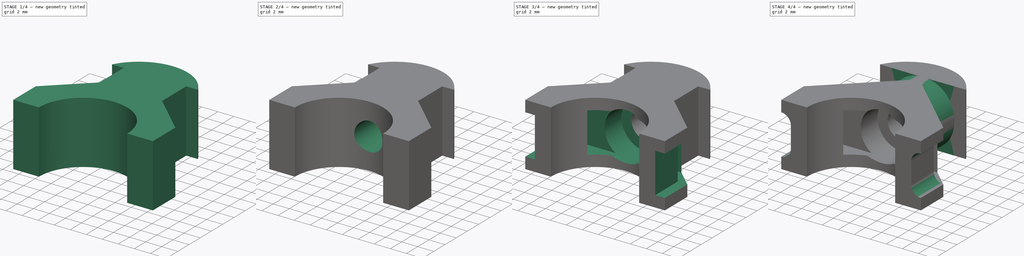
[diagram: build sequence overview — one tinted view per stage of 4, left to right]
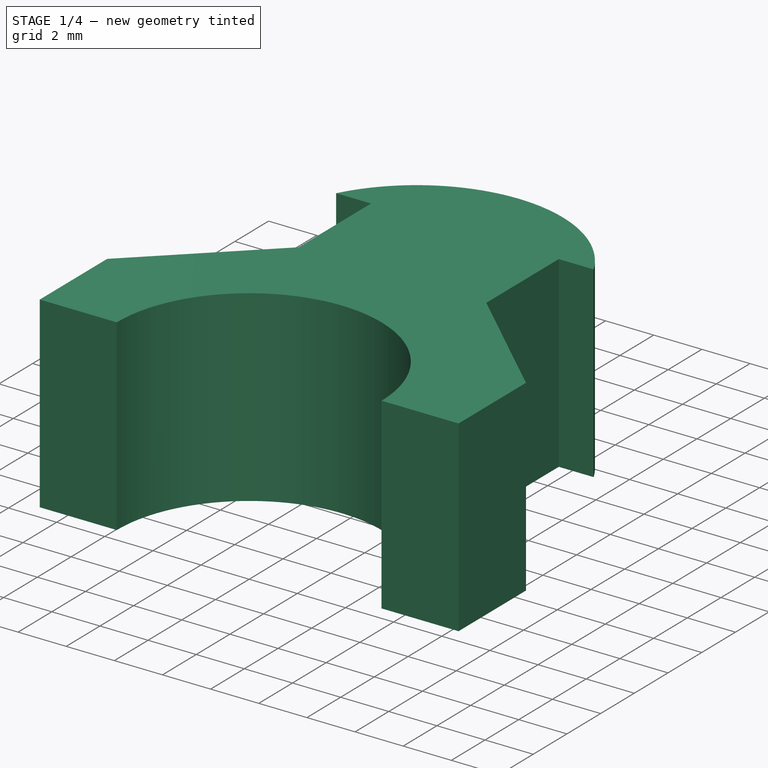
[diagram: stage 1 of 4 — iso view after this stage's code; geometry added in this stage tinted green]
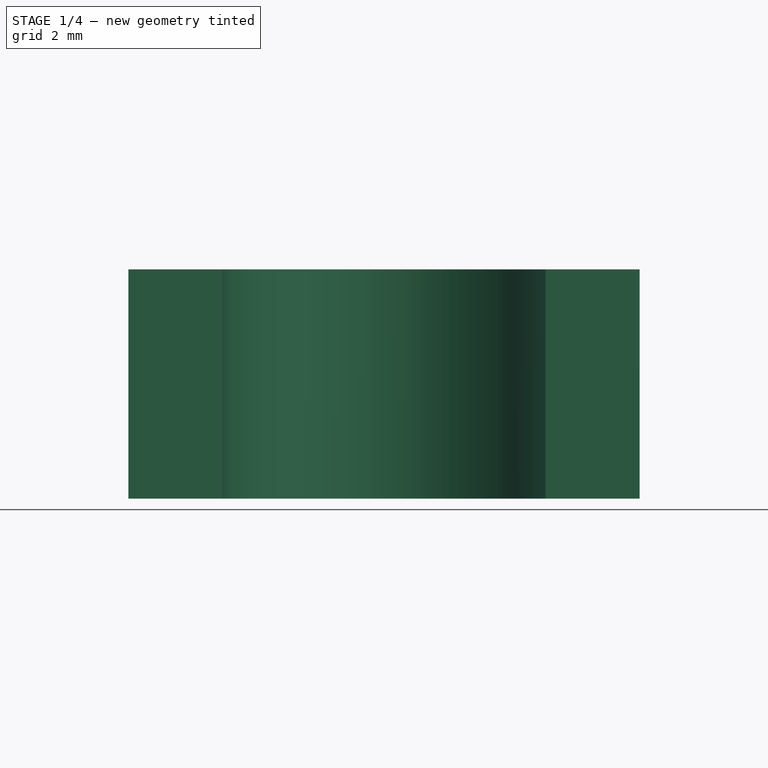
[diagram: stage 1 of 4 — front view after this stage's code; geometry added in this stage tinted green]
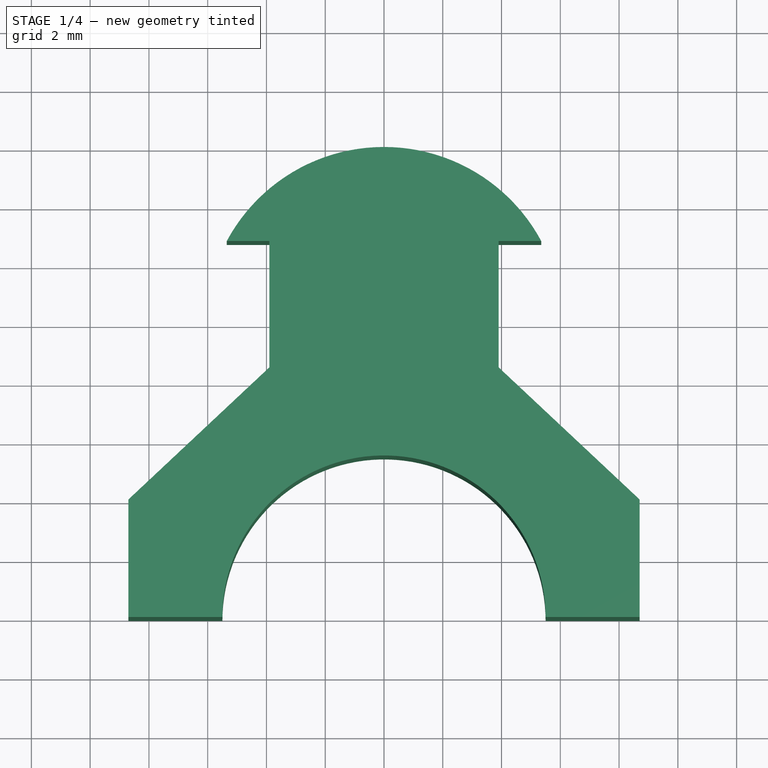
[diagram: stage 1 of 4 — top view after this stage's code; geometry added in this stage tinted green]
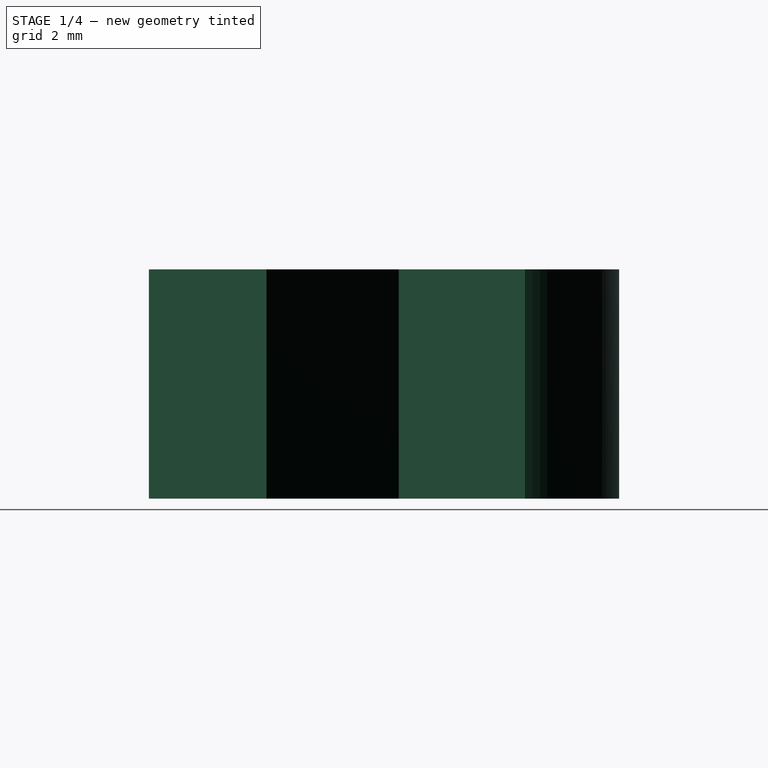
[diagram: stage 1 of 4 — right view after this stage's code; geometry added in this stage tinted green]
FCSTD DOCUMENT  (FreeCAD 0.17R13519 (Git))
Label: Corelia_0_hose_ziptie
License: All rights reserved
LicenseURL: http://en.wikipedia.org/wiki/All_rights_reserved
objects: Sketcher::SketchObject×7, PartDesign::Pocket×5, PartDesign::Pad×2, PartDesign::Plane×2, PartDesign::Fillet×2, PartDesign::Body×1
note: 26 computed .brp shape members not serialized (recipe doc carries the construction recipe); baked Part::Feature solids carry a one-line shape summary decoded from their .brp

FEATURE [Sketcher::SketchObject] Sketch
  MapMode = 5
  Support = -> [XY_Plane]
  sketch-geometry (7):
    g0: LineSegment StartX=-3.9 StartY=0 StartZ=0 EndX=3.9 EndY=0 EndZ=0
    g1: LineSegment StartX=3.9 StartY=0 StartZ=0 EndX=3.9 EndY=0.8 EndZ=0
    g2: LineSegment StartX=3.9 StartY=0.8 StartZ=0 EndX=5.35 EndY=0.8 EndZ=0
    g3: LineSegment StartX=-3.9 StartY=0 StartZ=0 EndX=-3.9 EndY=0.8 EndZ=0
    g4: LineSegment StartX=-3.9 StartY=0.8 StartZ=0 EndX=-5.35 EndY=0.8 EndZ=0
    g5: ArcOfCircle CenterX=0 CenterY=-2.07227 CenterZ=0 NormalX=0 NormalY=0 NormalZ=1 AngleXU=0 Radius=6.07227 StartAngle=0.492708 EndAngle=2.64888
    g6: LineSegment StartX=0 StartY=0 StartZ=0 EndX=0 EndY=4 EndZ=0
  constraints (22):
    c: PointOnObject(g0,g-1)
    c: Horizontal(g0)
    c: Coincident(g0,g1)
    c: Vertical(g1)
    c: Coincident(g1,g2)
    c: Horizontal(g2)
    c: Coincident(g0,g3)
    c: Vertical(g3)
    c: Coincident(g3,g4)
    c: Horizontal(g4)
    c: Symmetric(g0,g0,g-2)
    c: DistanceX(g0,g0) = 7.8
    c: Equal(g4,g2)
    c: DistanceX(g4,g2) = 10.7
    c: DistanceY(g3,g3) = 0.8
    c: Equal(g3,g1)
    c: Coincident(g5,g4)
    c: Coincident(g5,g2)
    c: Coincident(g6,g-1)
    c: PointOnObject(g6,g5)
    c: Vertical(g6)
    c: DistanceY(g6,g6) = 4
FEATURE [PartDesign::Pad] Pad
  Length = 7.8
  Length2 = 100
  Midplane = true
  Profile = -> Sketch
  Type = 0
FEATURE [Sketcher::SketchObject] Sketch001
  MapMode = 5
  Placement = pos=(0,0,-3.9) rot=(1,0,0;3.14159rad)
  Support = -> [Pad]
  sketch-geometry (10):
    g0: LineSegment StartX=-8.7 StartY=12 StartZ=0 EndX=-8.7 EndY=8 EndZ=0
    g1: LineSegment StartX=-3.9 StartY=0 StartZ=0 EndX=3.9 EndY=0 EndZ=0
    g2: LineSegment StartX=8.7 StartY=8 StartZ=0 EndX=8.7 EndY=12 EndZ=0
    g3: LineSegment StartX=8.7 StartY=12 StartZ=0 EndX=5.5 EndY=12 EndZ=0
    g4: ArcOfCircle CenterX=0 CenterY=12 CenterZ=0 NormalX=0 NormalY=0 NormalZ=1 AngleXU=0 Radius=5.5 StartAngle=3.14159 EndAngle=6.28319
    g5: LineSegment StartX=-5.5 StartY=12 StartZ=0 EndX=-8.7 EndY=12 EndZ=0
    g6: LineSegment StartX=-8.7 StartY=8 StartZ=0 EndX=-3.9 EndY=3.5 EndZ=0
    g7: LineSegment StartX=-3.9 StartY=3.5 StartZ=0 EndX=-3.9 EndY=0 EndZ=0
    g8: LineSegment StartX=8.7 StartY=8 StartZ=0 EndX=3.9 EndY=3.5 EndZ=0
    g9: LineSegment StartX=3.9 StartY=3.5 StartZ=0 EndX=3.9 EndY=0 EndZ=0
  constraints (30):
    c: Vertical(g0)
    c: Horizontal(g1)
    c: Vertical(g2)
    c: Coincident(g2,g3)
    c: Coincident(g5,g0)
    c: Horizontal(g3)
    c: Coincident(g5,g4)
    c: Tangent(g3,g5)
    c: Coincident(g3,g4)
    c: PointOnObject(g-1,g1)
    c: DistanceX(g1,g1) = 7.8
    c: Symmetric(g1,g1,g-2)
    c: Radius(g4) = 5.5
    c: Equal(g5,g3)
    c: Equal(g0,g2)
    c: PointOnObject(g4,g-2)
    c: PointOnObject(g4,g5)
    c: DistanceY(g4) = 12
    c: DistanceX(g5,g5) = 3.2
    c: DistanceY(g1,g0) = 8
    c: Coincident(g0,g6)
    c: Coincident(g6,g7)
    c: Coincident(g7,g1)
    c: Vertical(g7)
    c: Coincident(g2,g8)
    c: Coincident(g8,g9)
    c: Coincident(g9,g1)
    c: Vertical(g9)
    c: Equal(g9,g7)
    c: DistanceY(g7,g7) = 3.5
FEATURE [PartDesign::Pad] Pad001
  BaseFeature = -> Pad
  Length = 7.8
  Length2 = 100
  Profile = -> Sketch001
  Reversed = true
  Type = 0
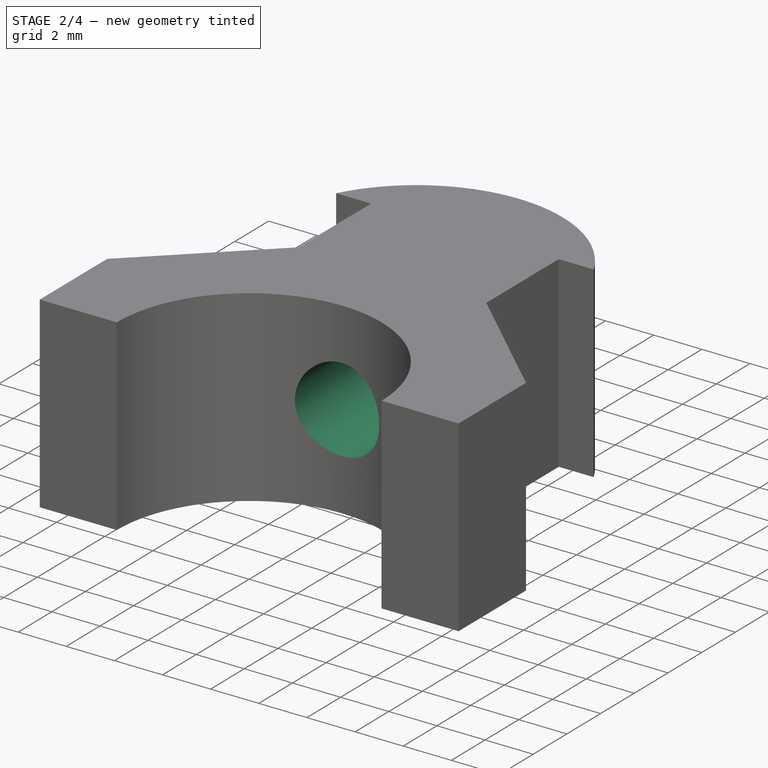
[diagram: stage 2 of 4 — iso view after this stage's code; geometry added in this stage tinted green]
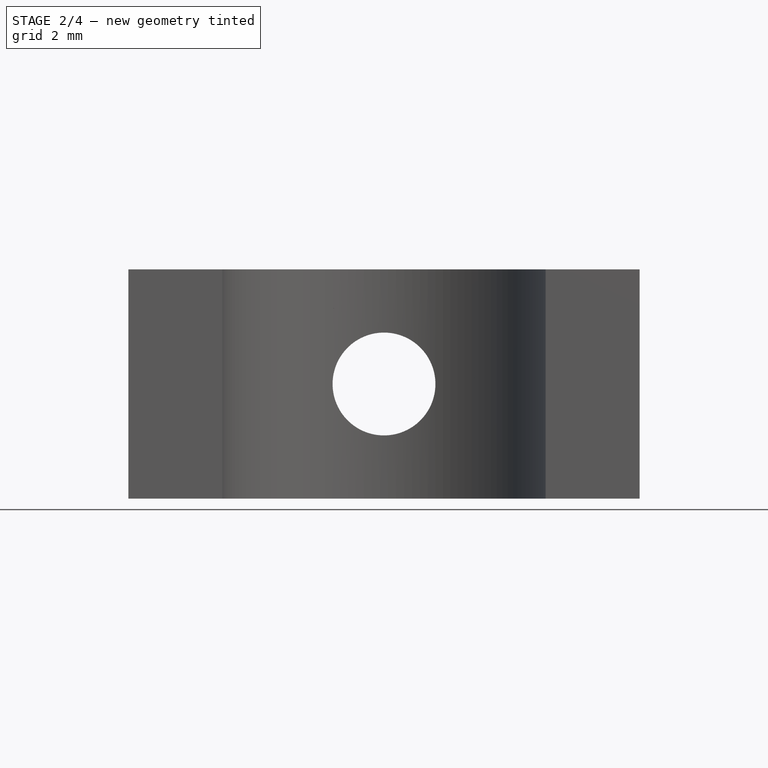
[diagram: stage 2 of 4 — front view after this stage's code; geometry added in this stage tinted green]
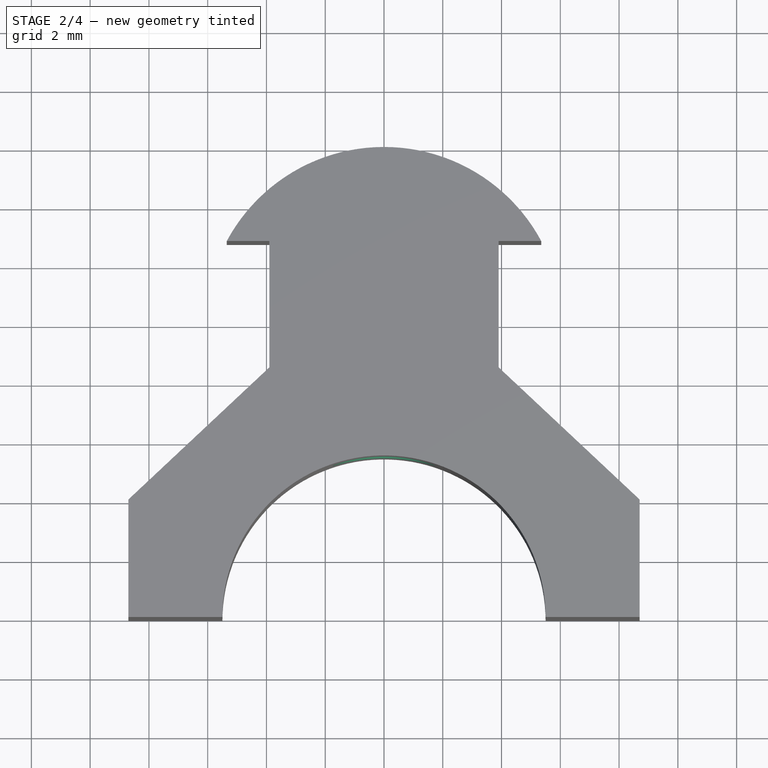
[diagram: stage 2 of 4 — top view after this stage's code; geometry added in this stage tinted green]
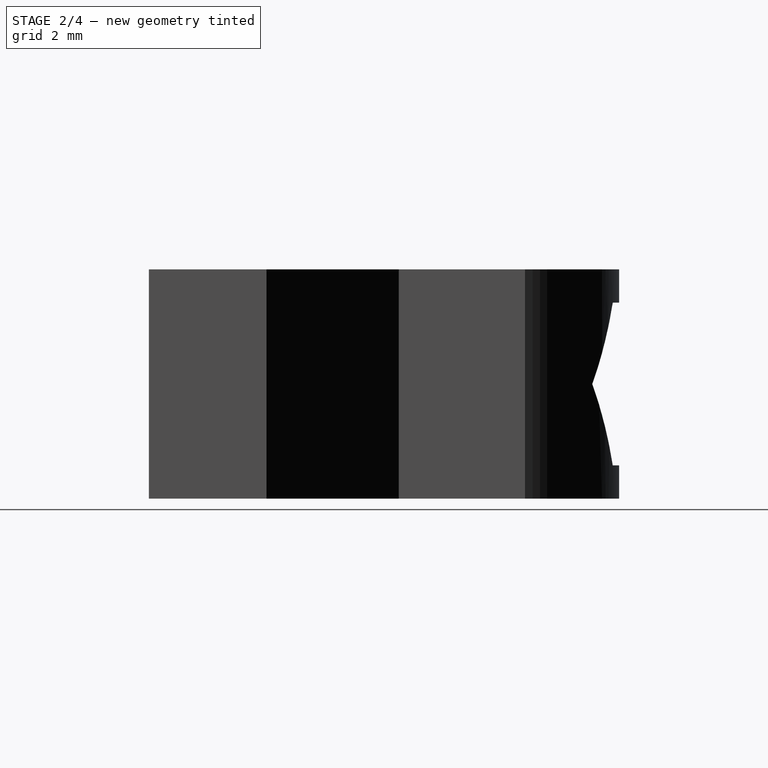
[diagram: stage 2 of 4 — right view after this stage's code; geometry added in this stage tinted green]
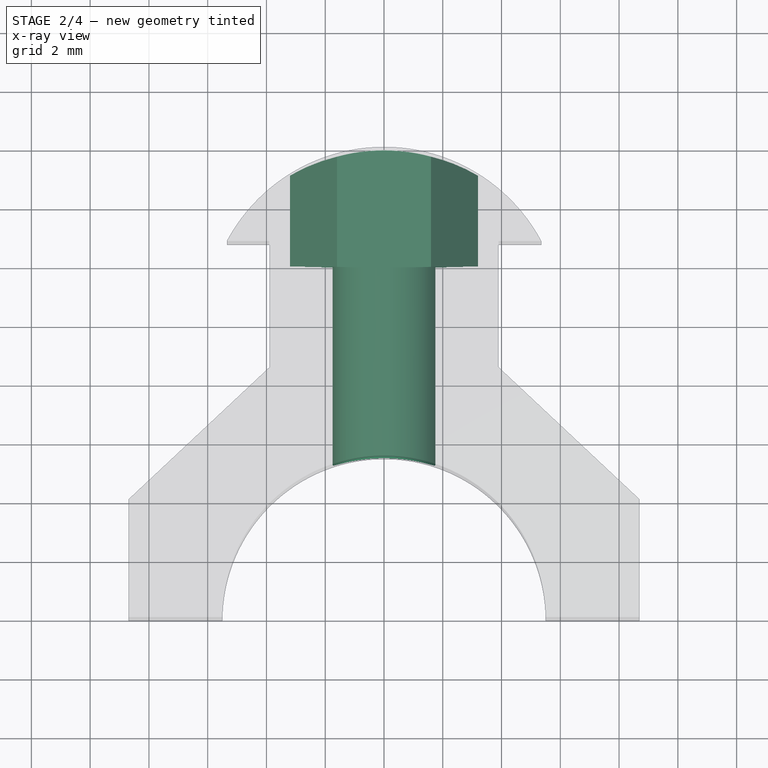
[diagram: stage 2 of 4 — x-ray composite at the top view; earlier geometry ghosted, this stage's added geometry solid]
FEATURE [Sketcher::SketchObject] Sketch002
  MapMode = 5
  Placement = pos=(0,0,0) rot=(1,0,0;1.5708rad)
  Support = -> [XZ_Plane]
  sketch-geometry (1):
    g0: Circle CenterX=0 CenterY=0 CenterZ=0 NormalX=0 NormalY=0 NormalZ=1 AngleXU=0 Radius=1.75
  constraints (3):
    c: PointOnObject(g0,g-1)
    c: Radius(g0) = 1.75
    c: Coincident(g-1,g0)
FEATURE [PartDesign::Pocket] Pocket
  BaseFeature = -> Pad001
  Length = 5
  Length2 = 100
  Midplane = true
  Profile = -> Sketch002
  Type = 1
FEATURE [PartDesign::Plane] DatumPlane
  AttachmentOffset = pos=(0,0,-4) rot=(0,0,1;0rad)
  MapMode = 5
  Placement = pos=(0,4,0) rot=(1,0,0;1.5708rad)
  Support = -> [XZ_Plane]
FEATURE [Sketcher::SketchObject] Sketch003
  MapMode = 5
  Placement = pos=(0,4,0) rot=(1,0,0;1.5708rad)
  Support = -> [DatumPlane]
  sketch-geometry (7):
    g0: LineSegment StartX=-1.6 StartY=-2.77128 StartZ=0 EndX=1.6 EndY=-2.77128 EndZ=0
    g1: LineSegment StartX=1.6 StartY=-2.77128 StartZ=0 EndX=3.2 EndY=0 EndZ=0
    g2: LineSegment StartX=3.2 StartY=0 StartZ=0 EndX=1.6 EndY=2.77128 EndZ=0
    g3: LineSegment StartX=1.6 StartY=2.77128 StartZ=0 EndX=-1.6 EndY=2.77128 EndZ=0
    g4: LineSegment StartX=-1.6 StartY=2.77128 StartZ=0 EndX=-3.2 EndY=0 EndZ=0
    g5: LineSegment StartX=-3.2 StartY=0 StartZ=0 EndX=-1.6 EndY=-2.77128 EndZ=0
    g6: Circle [constr] CenterX=0 CenterY=0 CenterZ=0 NormalX=0 NormalY=0 NormalZ=1 AngleXU=0 Radius=3.2
  constraints (17):
    c: Coincident(g0,g1)
    c: Coincident(g1,g2)
    c: Coincident(g2,g3)
    c: Coincident(g3,g4)
    c: Coincident(g4,g5)
    c: Coincident(g5,g0)
    c: Equal(g0, g1-g5) x5
    c: PointOnObject(g0,g6)
    c: PointOnObject(g1,g6)
    c: PointOnObject(g2,g6)
    c: PointOnObject(g3,g6)
    c: PointOnObject(g4,g6)
    c: PointOnObject(g5,g6)
    c: PointOnObject(g6,g-2)
    c: Horizontal(g0)
    c: Radius(g6) = 3.2
    c: Coincident(g6,g-1)
FEATURE [PartDesign::Pocket] Pocket001
  BaseFeature = -> Pocket
  Length = 4
  Length2 = 100
  Profile = -> Sketch003
  Reversed = true
  Type = 0
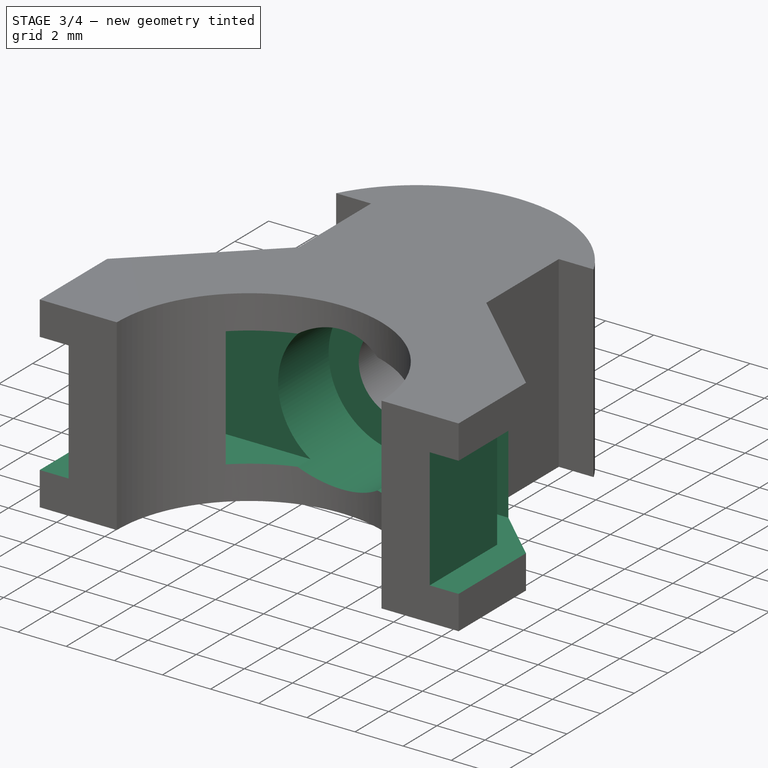
[diagram: stage 3 of 4 — iso view after this stage's code; geometry added in this stage tinted green]
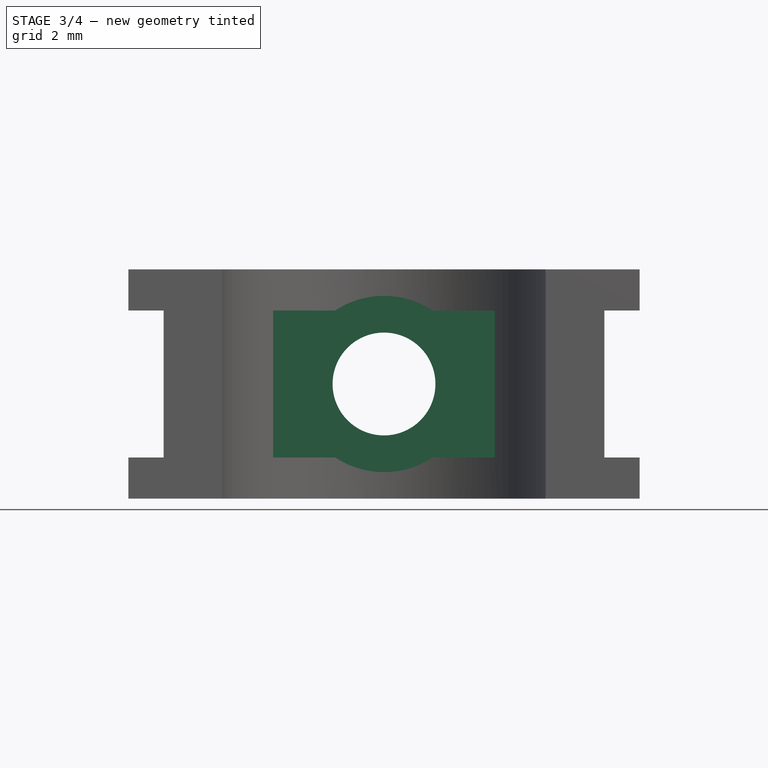
[diagram: stage 3 of 4 — front view after this stage's code; geometry added in this stage tinted green]
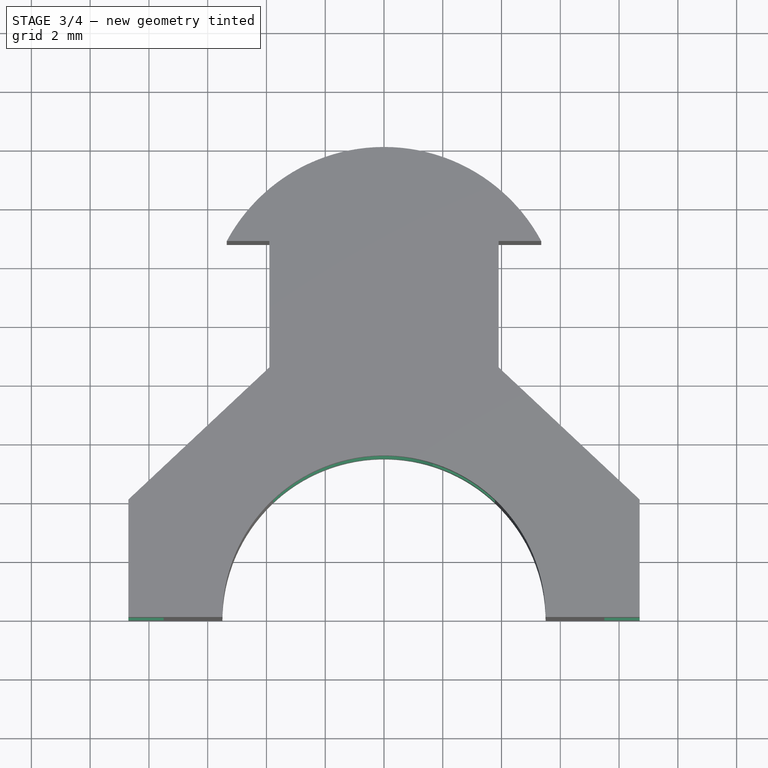
[diagram: stage 3 of 4 — top view after this stage's code; geometry added in this stage tinted green]
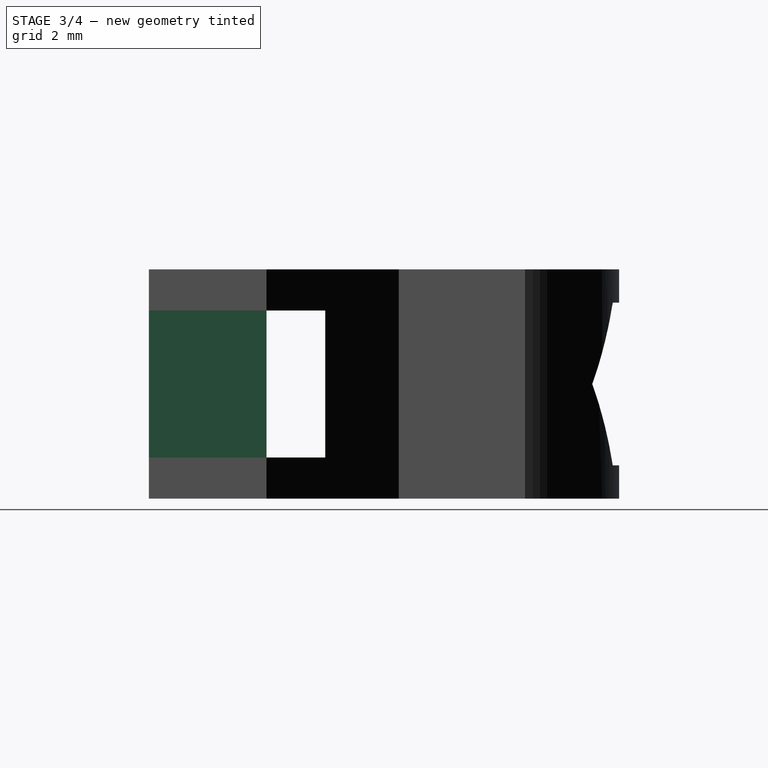
[diagram: stage 3 of 4 — right view after this stage's code; geometry added in this stage tinted green]
FEATURE [PartDesign::Plane] DatumPlane001
  AttachmentOffset = pos=(0,0,3) rot=(0,0,1;0rad)
  MapMode = 5
  Placement = pos=(0,-3,0) rot=(1,0,0;1.5708rad)
  Support = -> [XZ_Plane]
FEATURE [Sketcher::SketchObject] Sketch004
  MapMode = 5
  Placement = pos=(0,-3,0) rot=(1,0,0;1.5708rad)
  Support = -> [DatumPlane001]
  sketch-geometry (1):
    g0: Circle CenterX=0 CenterY=0 CenterZ=0 NormalX=0 NormalY=0 NormalZ=1 AngleXU=0 Radius=3
  constraints (2):
    c: Coincident(g0,g-1)
    c: Radius(g0) = 3
FEATURE [PartDesign::Pocket] Pocket002
  BaseFeature = -> Pocket001
  Length = 6
  Length2 = 100
  Profile = -> Sketch004
  Reversed = true
  Type = 0
FEATURE [Sketcher::SketchObject] Sketch005
  MapMode = 5
  Placement = pos=(0,-12,0) rot=(1,0,0;1.5708rad)
  Support = -> [Pocket002]
  sketch-geometry (8):
    g0: LineSegment StartX=-8.7 StartY=2.5 StartZ=0 EndX=-7.5 EndY=2.5 EndZ=0
    g1: LineSegment StartX=-7.5 StartY=2.5 StartZ=0 EndX=-7.5 EndY=-2.5 EndZ=0
    g2: LineSegment StartX=-7.5 StartY=-2.5 StartZ=0 EndX=-8.7 EndY=-2.5 EndZ=0
    g3: LineSegment StartX=-8.7 StartY=-2.5 StartZ=0 EndX=-8.7 EndY=2.5 EndZ=0
    g4: LineSegment StartX=8.7 StartY=2.5 StartZ=0 EndX=7.5 EndY=2.5 EndZ=0
    g5: LineSegment StartX=7.5 StartY=2.5 StartZ=0 EndX=7.5 EndY=-2.5 EndZ=0
    g6: LineSegment StartX=7.5 StartY=-2.5 StartZ=0 EndX=8.7 EndY=-2.5 EndZ=0
    g7: LineSegment StartX=8.7 StartY=-2.5 StartZ=0 EndX=8.7 EndY=2.5 EndZ=0
  constraints (23):
    c: Coincident(g0,g1)
    c: Coincident(g1,g2)
    c: Coincident(g2,g3)
    c: Coincident(g3,g0)
    c: Horizontal(g0)
    c: Horizontal(g2)
    c: Vertical(g1)
    c: Vertical(g3)
    c: Coincident(g4,g5)
    c: Coincident(g5,g6)
    c: Coincident(g6,g7)
    c: Coincident(g7,g4)
    c: Horizontal(g4)
    c: Horizontal(g6)
    c: Vertical(g5)
    c: Vertical(g7)
    c: Symmetric(g0,g1,g-1)
    c: Equal(g6,g2)
    c: Equal(g1,g5)
    c: Symmetric(g1,g5,g-2)
    c: DistanceX(g0,g0) = 1.2
    c: DistanceY(g3,g3) = 5
    c: DistanceX(g0,g4) = 15
FEATURE [PartDesign::Pocket] Pocket003
  BaseFeature = -> Pocket002
  Length = 5
  Length2 = 100
  Profile = -> Sketch005
  Type = 1
FEATURE [Sketcher::SketchObject] Sketch006
  MapMode = 5
  Placement = pos=(8.7,0,0) rot=(0.57735,0.57735,0.57735;2.0944rad)
  Support = -> [Pocket003]
  sketch-geometry (4):
    g0: LineSegment StartX=-8 StartY=-2.5 StartZ=0 EndX=-6 EndY=-2.5 EndZ=0
    g1: LineSegment StartX=-6 StartY=-2.5 StartZ=0 EndX=-6 EndY=2.5 EndZ=0
    g2: LineSegment StartX=-6 StartY=2.5 StartZ=0 EndX=-8 EndY=2.5 EndZ=0
    g3: LineSegment StartX=-8 StartY=2.5 StartZ=0 EndX=-8 EndY=-2.5 EndZ=0
  constraints (12):
    c: Coincident(g0,g1)
    c: Coincident(g1,g2)
    c: Coincident(g2,g3)
    c: Coincident(g3,g0)
    c: Horizontal(g0)
    c: Horizontal(g2)
    c: Vertical(g1)
    c: Vertical(g3)
    c: DistanceY(g1,g1) = 5
    c: Symmetric(g1,g0,g-1)
    c: DistanceX(g2,g2) = 2
    c: DistanceX(g0) = -6
FEATURE [PartDesign::Pocket] Pocket004
  BaseFeature = -> Pocket003
  Length = 5
  Length2 = 100
  Profile = -> Sketch006
  Type = 1
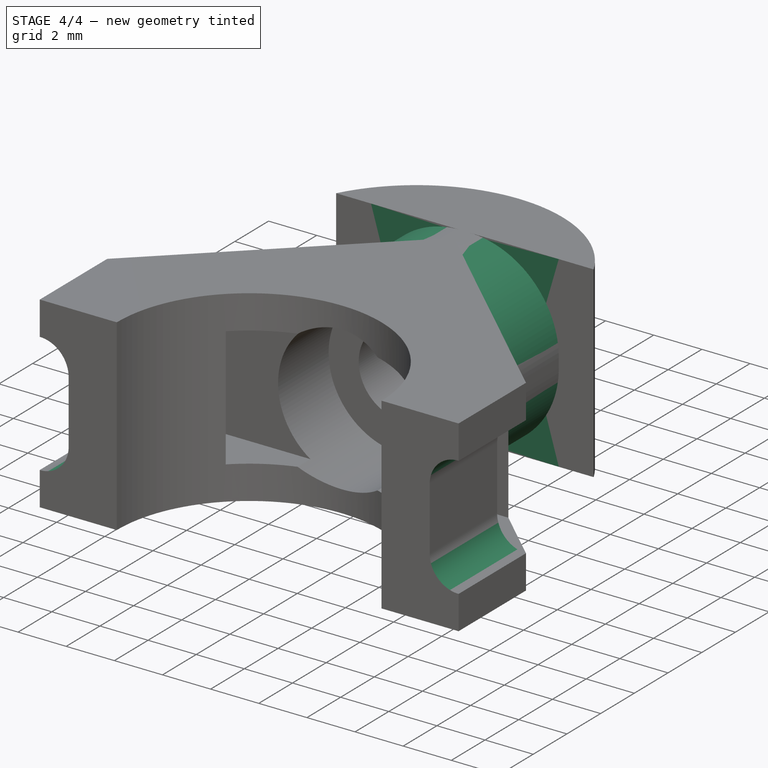
[diagram: stage 4 of 4 — iso view after this stage's code; geometry added in this stage tinted green]
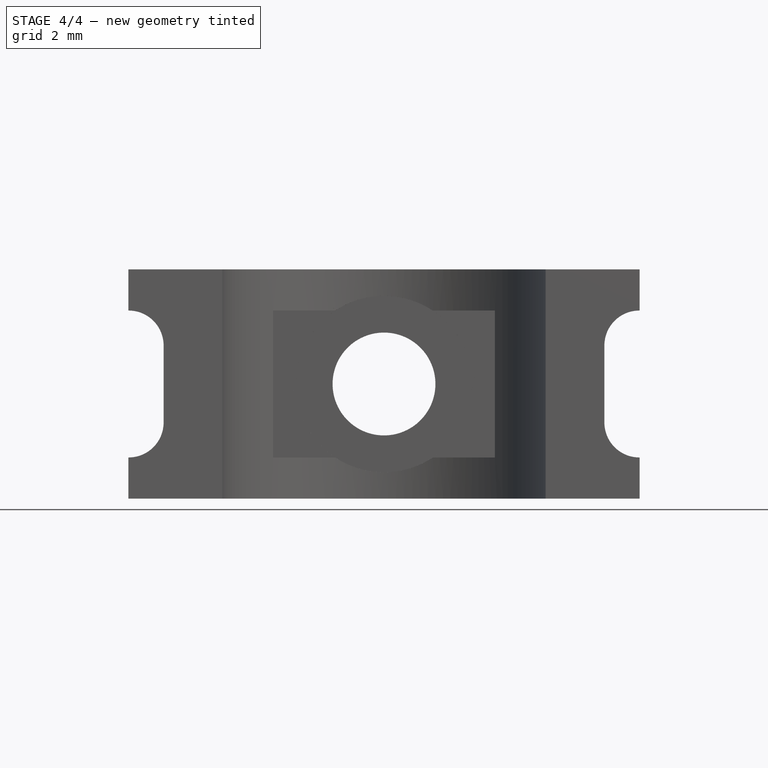
[diagram: stage 4 of 4 — front view after this stage's code; geometry added in this stage tinted green]
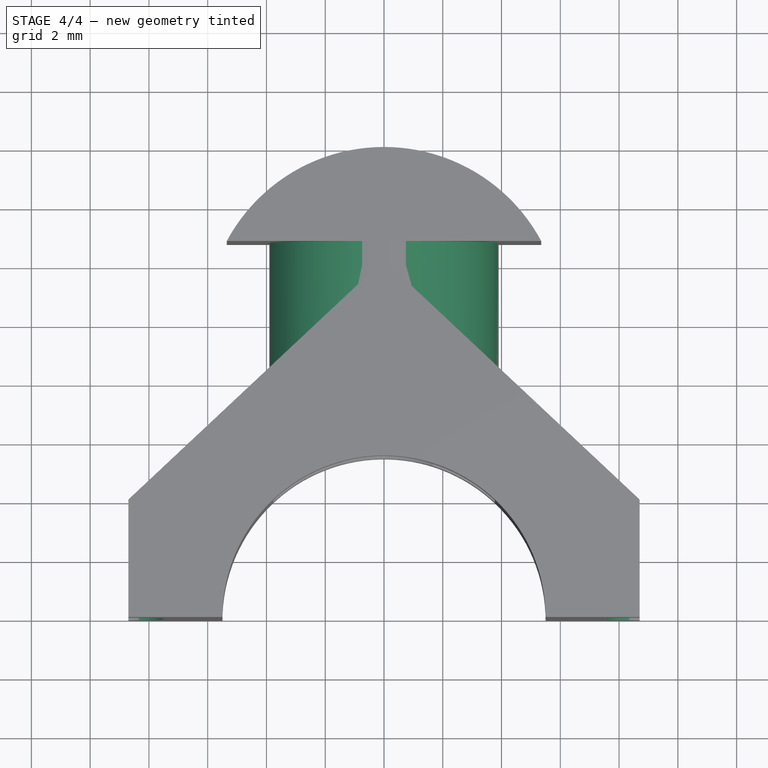
[diagram: stage 4 of 4 — top view after this stage's code; geometry added in this stage tinted green]
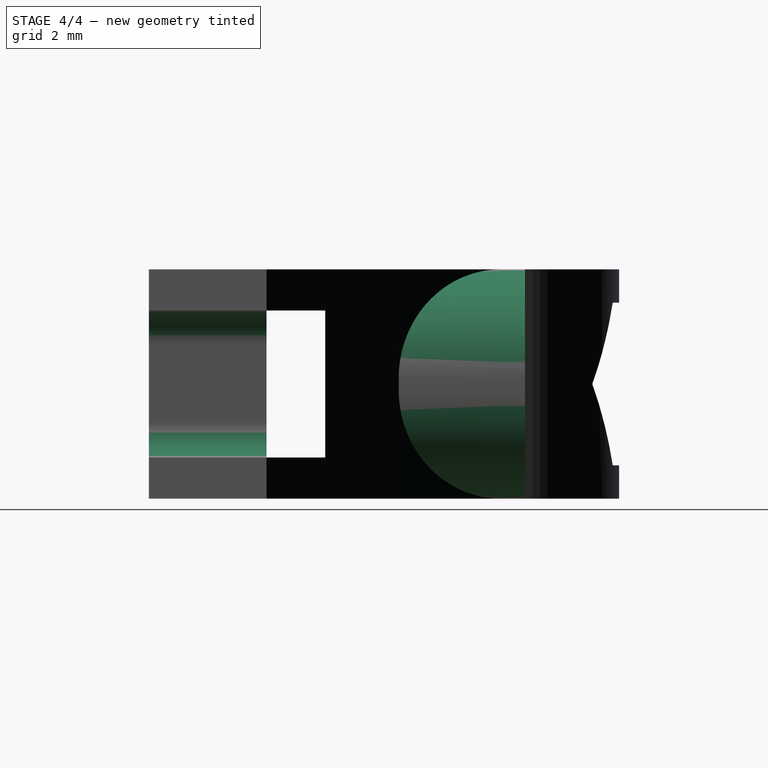
[diagram: stage 4 of 4 — right view after this stage's code; geometry added in this stage tinted green]
FEATURE [PartDesign::Fillet] Fillet
  Base = -> Pocket004 [Edge27,Edge26,Edge57,Edge48]
  BaseFeature = -> Pocket004
  Radius = 3.7
FEATURE [PartDesign::Fillet] Fillet001
  Base = -> Fillet [Edge153,Edge150,Edge152,Edge149]
  BaseFeature = -> Fillet
  Radius = 1.19
FEATURE [PartDesign::Body] Body
  Group = -> [Sketch,Pad,Sketch001,Pad001,Sketch002,Pocket,DatumPlane,Sketch003,Pocket001,DatumPlane001,Sketch004,Pocket002,Sketch005,Pocket003,Sketch006,Pocket004,Fillet,Fillet001]
  Origin = -> Origin
  Tip = -> Fillet001
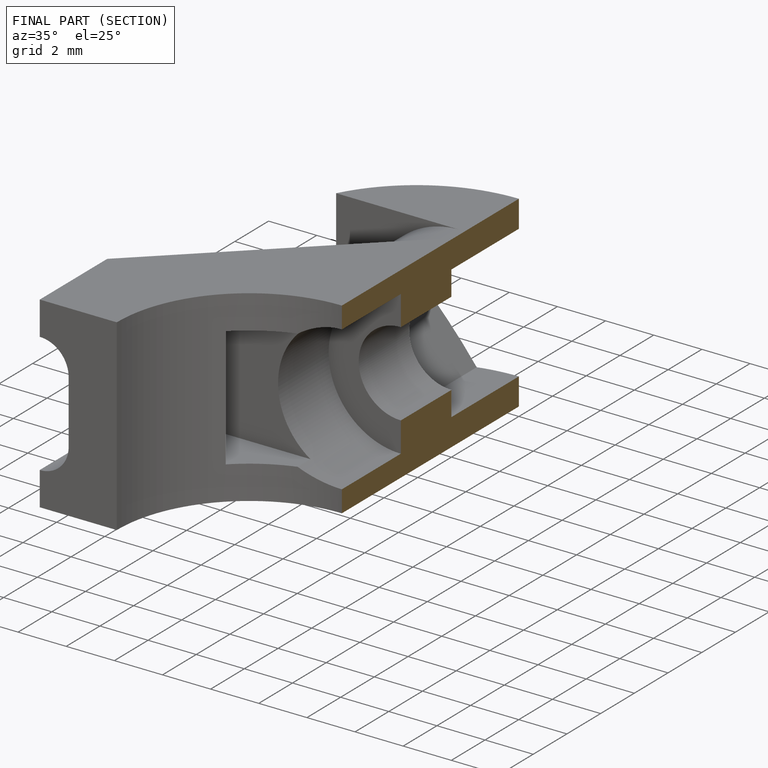
[diagram: finished part — half-section view (interior)]
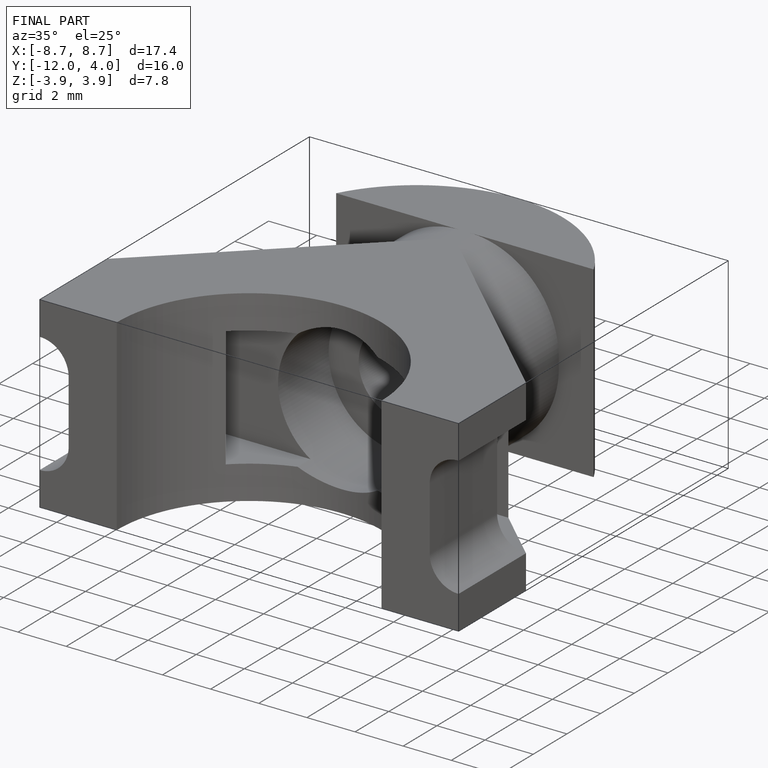
[diagram: finished part — iso view with bounding-box wireframe]
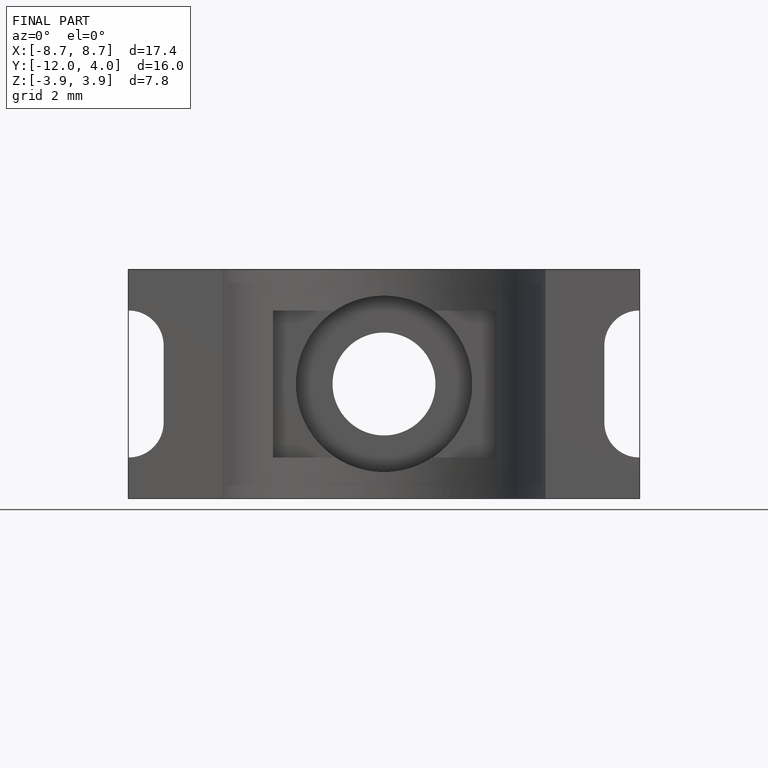
[diagram: finished part — front view with bounding-box wireframe]
